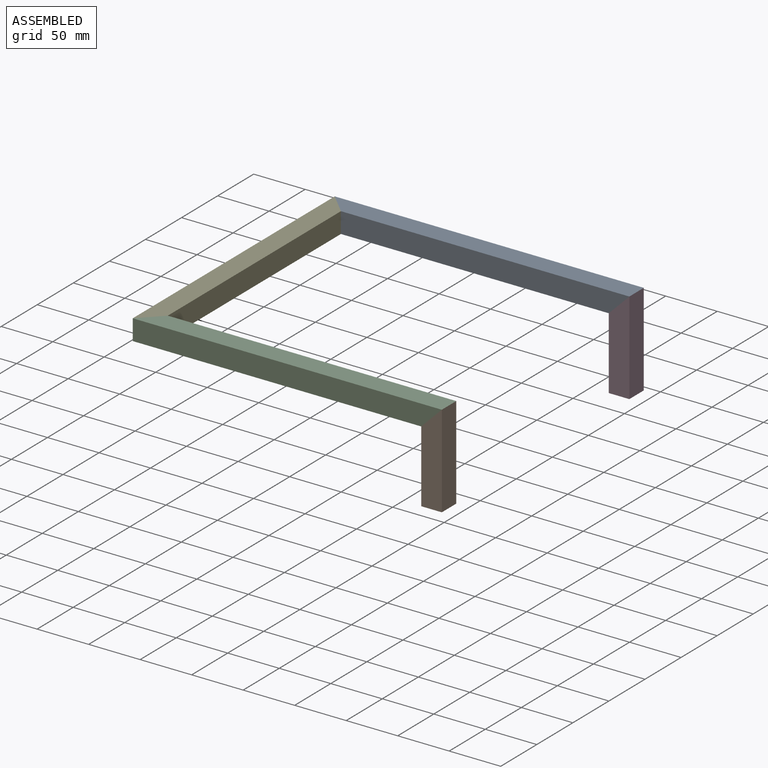
[diagram: assembled view]
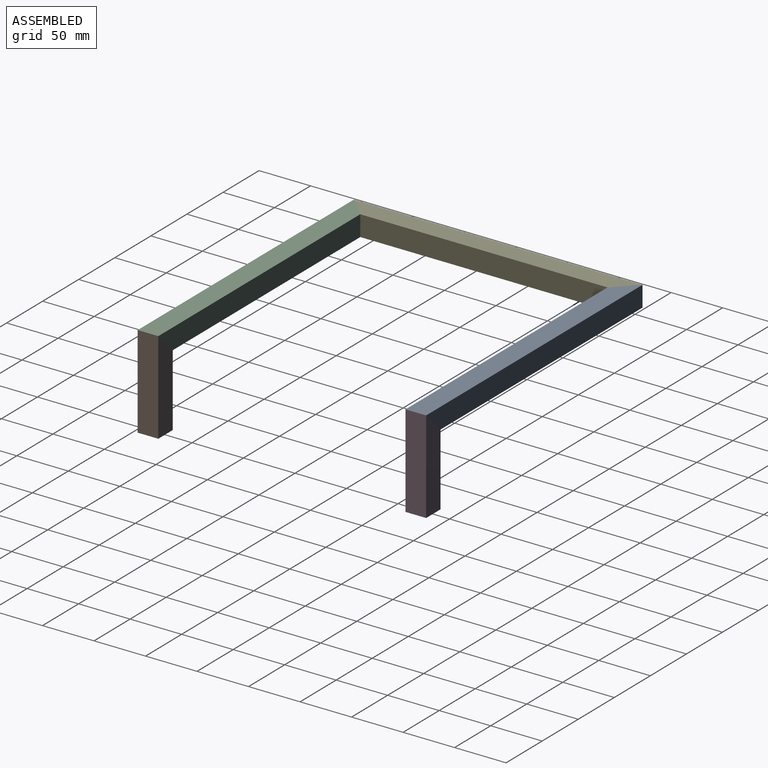
[diagram: assembled view, second angle]
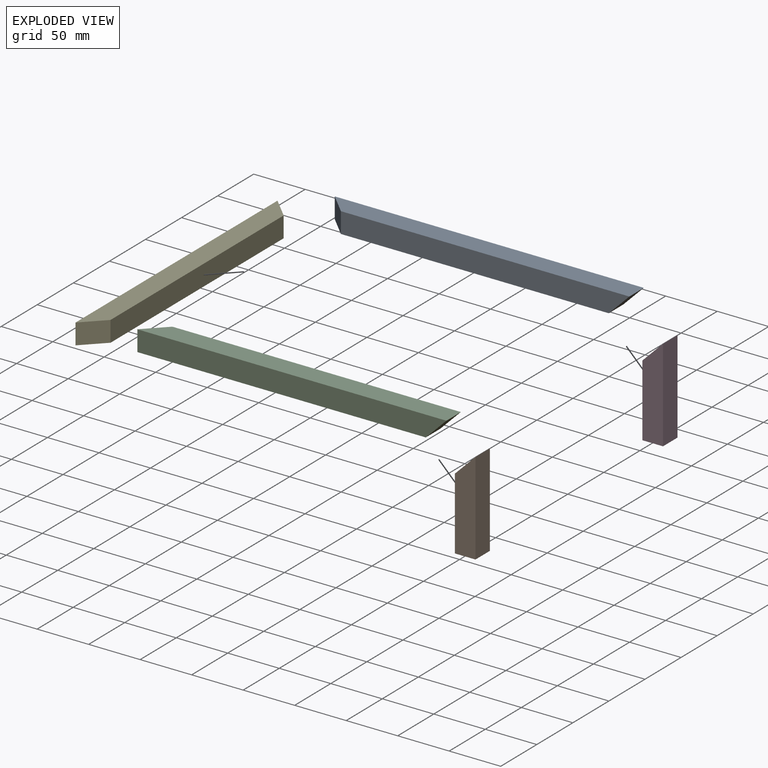
[diagram: exploded view]
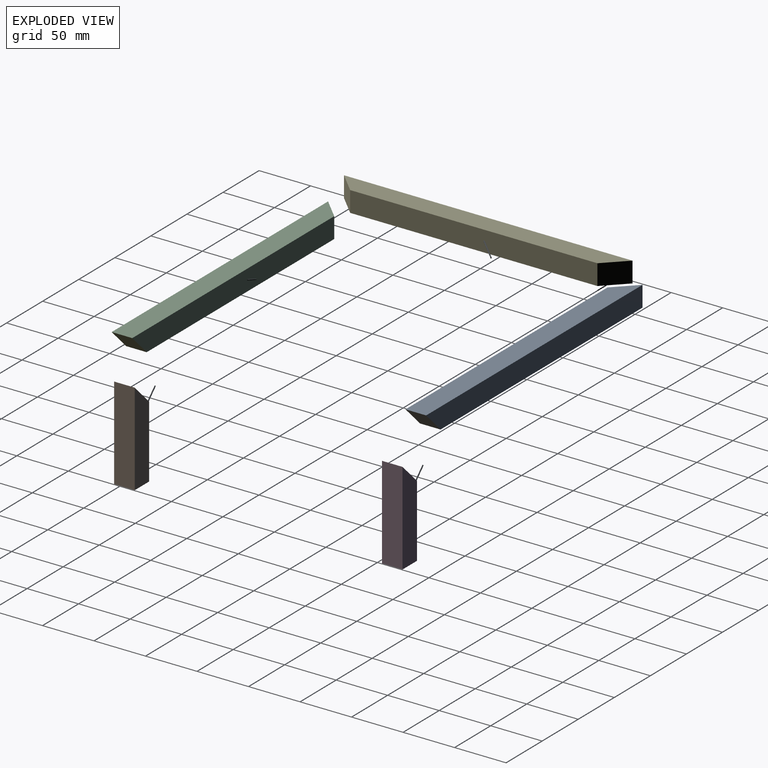
[diagram: exploded view, second angle]
ASSEMBLY  parts=5 mates=4
PART A: 6 faces, bbox 300x20x20 mm
  f0: plane 280x20mm, normal (0,-1,0), area 5400mm2, adj f2,f3,f4,f5
  f1: plane 300x20mm, normal (0,1,0), area 5800mm2, adj f2,f3,f4,f5
  f2: plane 280x20mm, normal (0,0,1), area 5400mm2, adj f0,f1,f4,f5
  f3: plane 300x20mm, normal (0,0,-1), area 5800mm2, adj f0,f1,f4,f5
  f4: plane 20x20mm, normal (0.71,-0.71,0), area 565.7mm2, adj f0,f1,f2,f3
  f5: plane 20x20mm, normal (-0.71,0,0.71), area 565.7mm2, adj f0,f1,f2,f3
PART B: 6 faces, bbox 20x20x90 mm
  f0: plane 20x20mm, normal (0,0,-1), area 400mm2, adj f1,f2,f3,f4
  f1: plane 90x20mm, normal (1,0,0), area 1800mm2, adj f0,f3,f4,f5
  f2: plane 70x20mm, normal (-1,0,0), area 1400mm2, adj f0,f3,f4,f5
  f3: plane 90x20mm, normal (0,-1,0), area 1600mm2, adj f0,f1,f2,f5
  f4: plane 90x20mm, normal (0,1,0), area 1600mm2, adj f0,f1,f2,f5
  f5: plane 20x20mm, normal (-0.71,0,0.71), area 565.7mm2, adj f1,f2,f3,f4
PART C: 6 faces, bbox 300x20x20 mm
  f0: plane 280x20mm, normal (0,0,-1), area 5400mm2, adj f2,f3,f4,f5
  f1: plane 300x20mm, normal (0,0,1), area 5800mm2, adj f2,f3,f4,f5
  f2: plane 300x20mm, normal (0,-1,0), area 5800mm2, adj f0,f1,f4,f5
  f3: plane 280x20mm, normal (0,1,0), area 5400mm2, adj f0,f1,f4,f5
  f4: plane 20x20mm, normal (0.71,0,-0.71), area 565.7mm2, adj f0,f1,f2,f3
  f5: plane 20x20mm, normal (-0.71,0.71,0), area 565.7mm2, adj f0,f1,f2,f3
PART D: same geometry as B
PART E: 6 faces, bbox 280x20x20 mm
  f0: plane 280x20mm, normal (0,-1,0), area 5600mm2, adj f2,f3,f4,f5
  f1: plane 240x20mm, normal (0,1,0), area 4800mm2, adj f2,f3,f4,f5
  f2: plane 280x20mm, normal (0,0,1), area 5200mm2, adj f0,f1,f4,f5
  f3: plane 280x20mm, normal (0,0,-1), area 5200mm2, adj f0,f1,f4,f5
  f4: plane 20x20mm, normal (0.71,0.71,0), area 565.7mm2, adj f0,f1,f2,f3
  f5: plane 20x20mm, normal (-0.71,0.71,0), area 565.7mm2, adj f0,f1,f2,f3
PLACE A rot(axis=(1,0,0),90deg) t=(-147.45,0,35)mm
PLACE B t=(0,-260,0)mm
PLACE C t=(-146.21,-260,35)mm
PLACE D at identity
PLACE E rot(axis=(0,0,-1),90deg) t=(-286.21,-140,25)mm
MATE fastened A.f4 <-> D.f5  axis (0.71,0,-0.71) through (-6.21,-10,35)mm
MATE fastened E.f4 <-> C.f5  axis (0.71,-0.71,0) through (-286.21,-270,35)mm
MATE fastened E.f5 <-> A.f5  axis (0.71,0.71,0) through (-286.21,-10,35)mm
MATE fastened B.f5 <-> C.f4  axis (-0.71,0,0.71) through (-6.21,-270,35)mm
